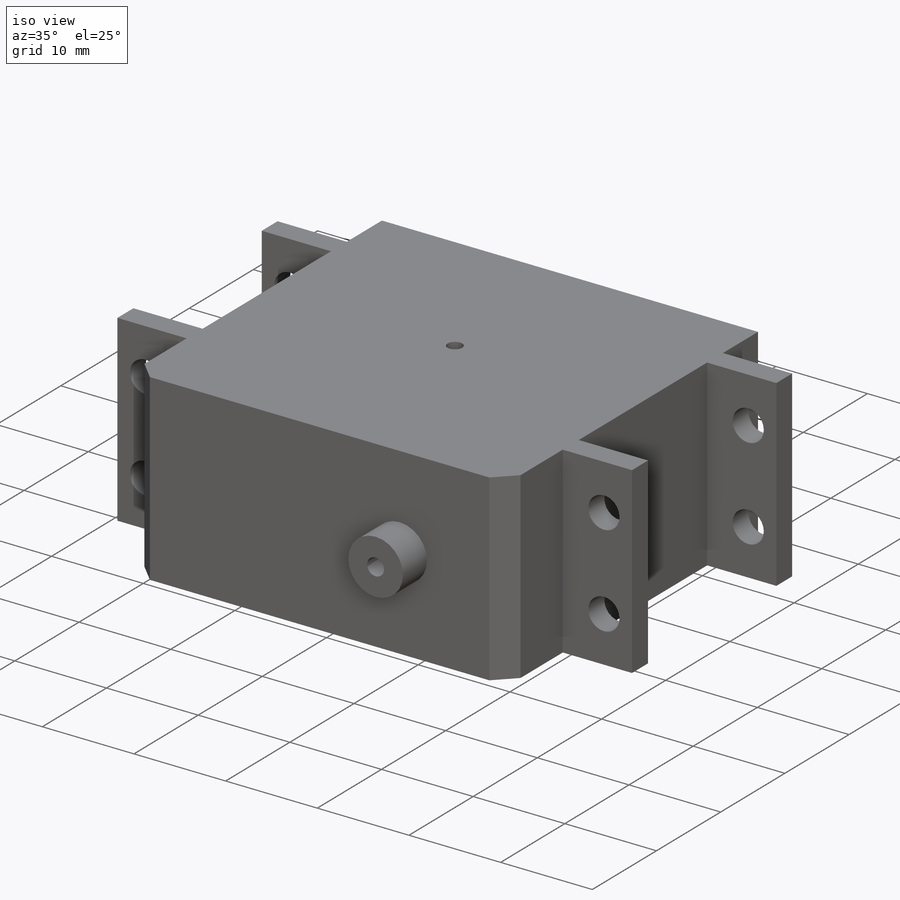
[diagram: iso view]
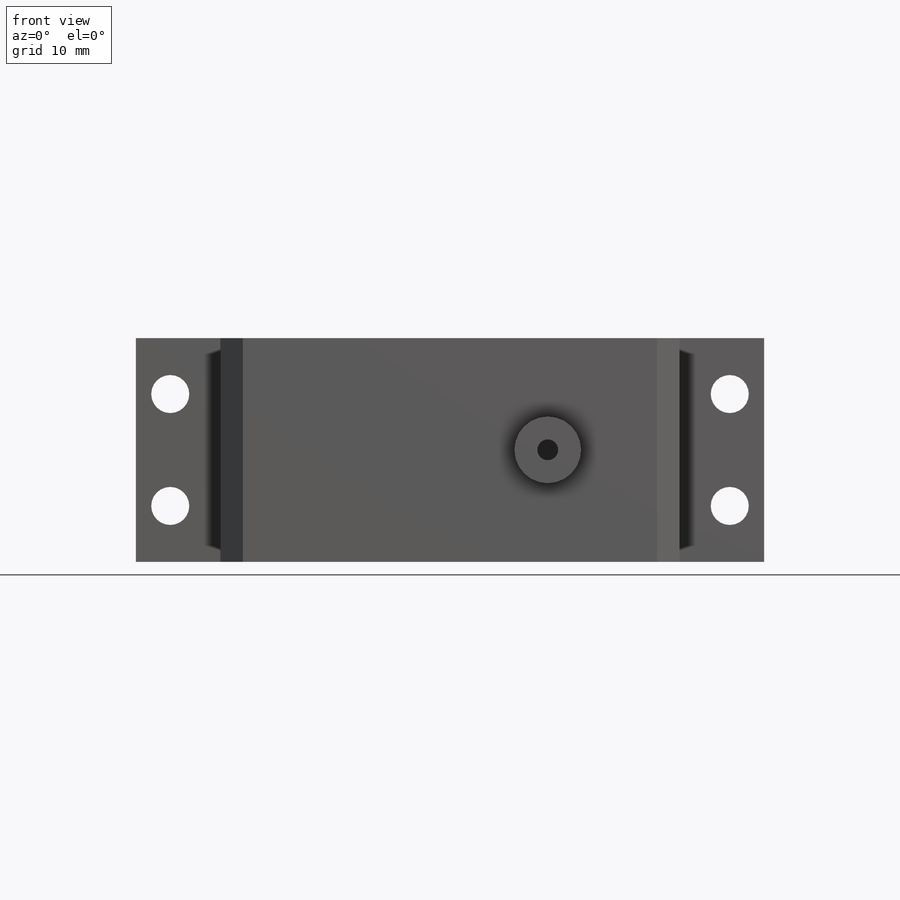
[diagram: front view]
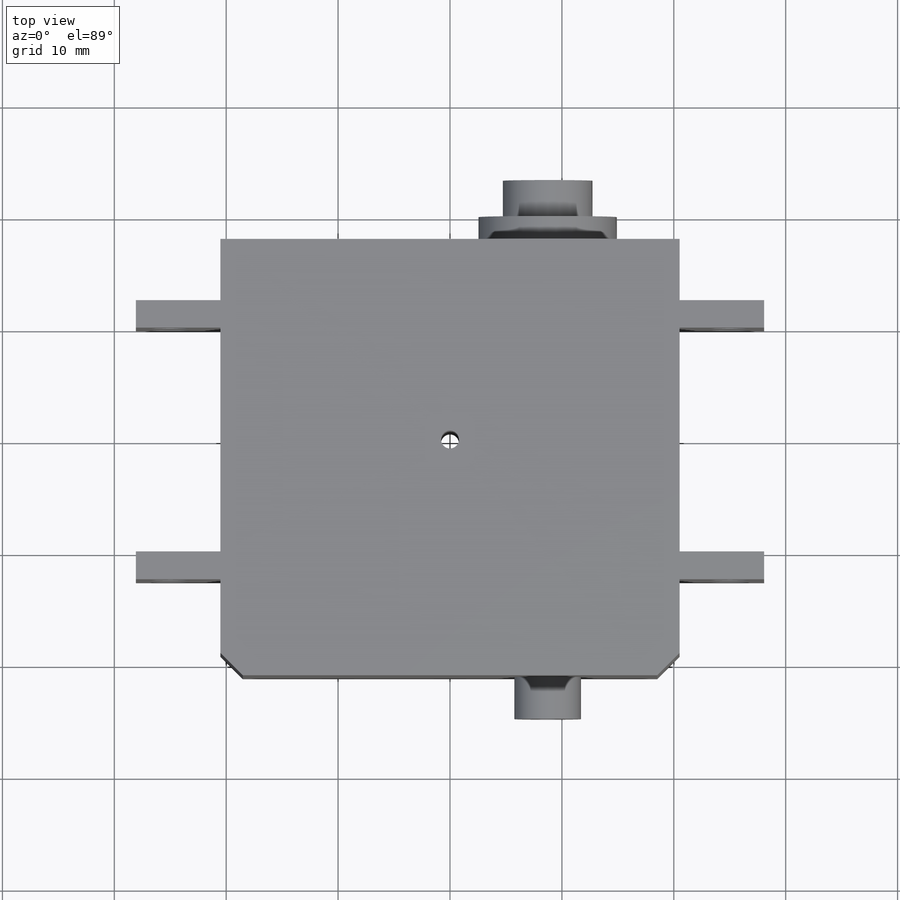
[diagram: top view]
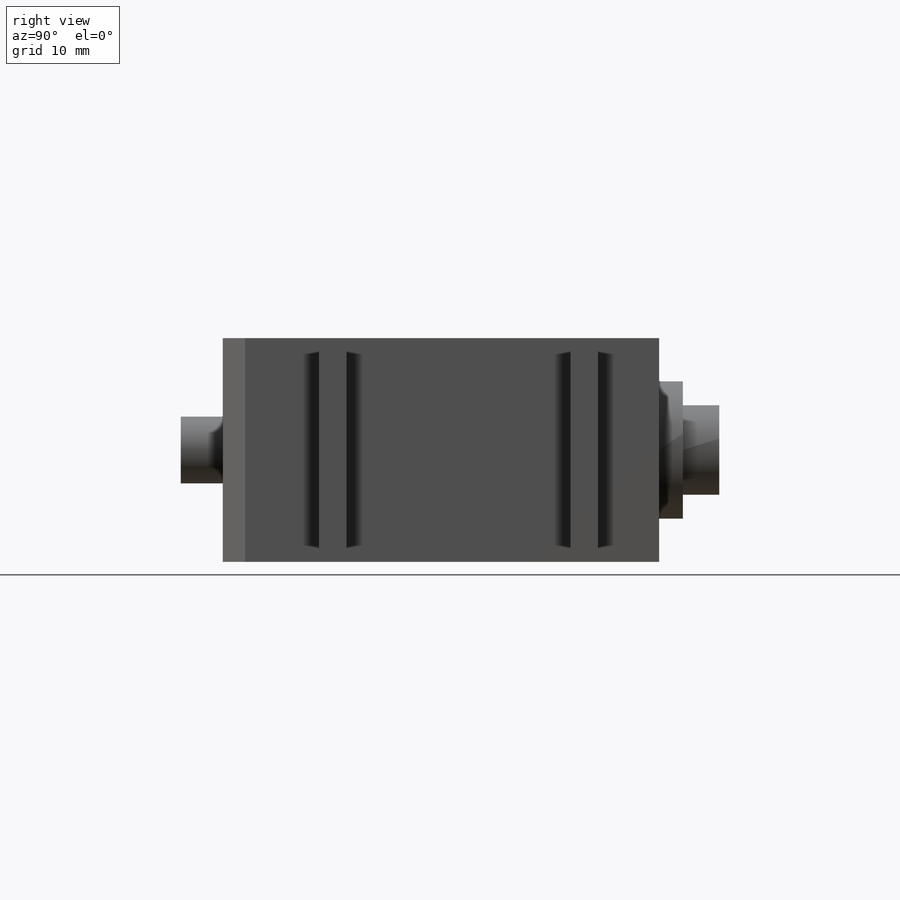
[diagram: right view]
SOLIDWORKS PART (.sldprt)
format: sldprt  version: not decoded by parser v0  size: 519,168 bytes
history: native  units: mm
features: sketch x19, extrude x9, hole x3, cut_extrude x3, material x1, chamfer x1 (+12 scaffold rows collapsed)
feature tree (48):
  scaffold x12  (default folders/planes/origin — collapsed)
  material  "Material <not specified>"
  sketch  "Sketch1"  dims[D1=56.14mm D2=20.0mm]
  extrude  "Boss-Extrude1"  Depth=2.49mm
  hole  "M3 Clearance Hole1"  Diameter=3.4mm Depth=19mm
  sketch  "Sketch3"  dims[D1=50.0mm D2=10.0mm]
  sketch  "Sketch2"  dims[hole-wizard template sketch: 47 standard entries collapsed; hole parameters kept: c15.Hole Depth=19.0mm c15.D3=~14.816244mm c15.Drill Angle=118.0deg]
  sketch  "Sketch4"  dims[D1=41.03mm D2=20.0mm]
  extrude  "Boss-Extrude2"  Depth=8.58mm
  sketch  "Sketch5"  dims[D1=5.96mm D2=8.73mm]
  extrude  "Boss-Extrude3"  Depth=3.75mm
  sketch  "Sketch6"  dims[D1=8.0mm D2=57.5mm]
  extrude  "Boss-Extrude4"  Depth=20mm
  sketch  "Sketch7"
  extrude  "Boss-Extrude5"  [1 undecoded]
  sketch  "Sketch8"
  extrude  "Boss-Extrude6"  Depth=24.95mm
  hole  "M3 Clearance Hole2"  Diameter=3.4mm Depth=24.95mm
  sketch  "Sketch11"
  sketch  "Sketch12"  dims[hole-wizard template sketch: 60 standard entries collapsed; hole parameters kept: c18.Thru Hole Depth=24.95mm]
  sketch  "Sketch13"
  extrude  "Boss-Extrude7"  Depth=39mm
  sketch  "Sketch14"  dims[D1=8.0mm D2=2.5mm]
  extrude  "Boss-Extrude8"  Depth=48.12mm
  hole  "Tap Drill for M2 Tap1"  Diameter=1.6mm Depth=20.00005mm
  sketch  "Sketch17"  dims[D1=50.0mm D2=10.0mm]
  sketch  "Sketch16"  dims[hole-wizard template sketch: 60 standard entries collapsed; hole parameters kept: c18.Thru Hole Depth=~20.00005mm]
  chamfer  "Chamfer1"  Distance=2mm Angle=45deg
  sketch  "Sketch19"  dims[D1=12.36mm]
  extrude  "Boss-Extrude10"  Depth=2.12mm
  sketch  "Sketch20"  dims[D1=20.0mm D2=1.0mm]
  sketch  "Sketch21"  dims[D1=7.0mm]
  cut_extrude  "Cut-Extrude1"  Depth=28mm
  sketch  "Sketch22"
  cut_extrude  "Cut-Extrude2"  [1 undecoded]
  sketch  "Sketch23"
  cut_extrude  "Cut-Extrude3"  [1 undecoded]
decode coverage: 26 of 35 modeling features carry decoded parameters
note: ~ marks probable driven/reference dimensions
note: 3 parameter values undecoded
summary: no parameter record found for 3 features
note: suppression state not decoded; provenance and decode notes live in map.json
